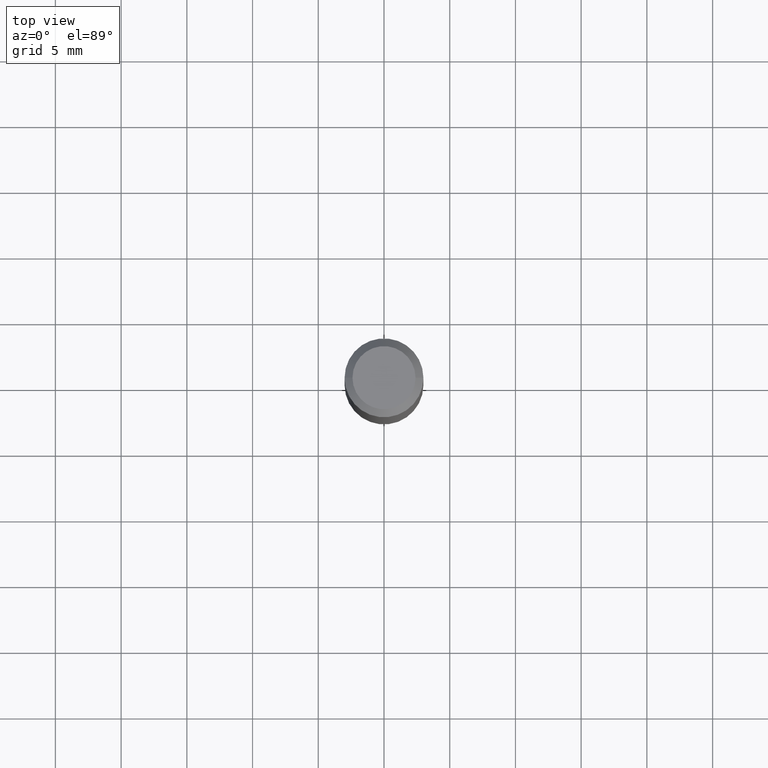
[diagram: clean part render]
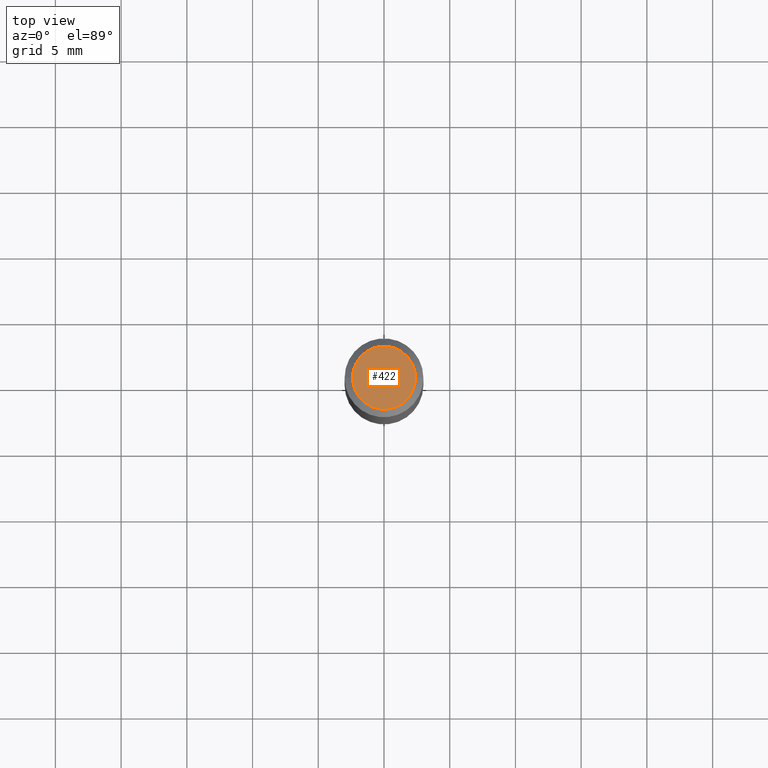
[diagram: same view with one face highlighted and labeled with its STEP entity id]
A machine part, top view. The second image highlights one B-rep face of the part: STEP entity #422.
In plain terms, the highlighted planar face has unit normal (0, -0, -1).
Its self-contained STEP definition (entity closure, byte-faithful):
#14 = FACE_OUTER_BOUND ( 'NONE', #320, .T. ) ;
#37 = DIRECTION ( 'NONE',  ( 2.438088387897960049E-29, -3.491481338843145188E-15, -1.000000000000000000 ) ) ;
#67 = DIRECTION ( 'NONE',  ( -2.445468806185136597E-29, 3.491481338843145583E-15, 1.000000000000000000 ) ) ;
#76 = VERTEX_POINT ( 'NONE', #456 ) ;
#89 = DIRECTION ( 'NONE',  ( -1.000000000000000000, 6.982962677686265922E-15, -4.876176775795935793E-29 ) ) ;
#161 = CARTESIAN_POINT ( 'NONE',  ( -0.09447999999999998066, 7.009847083995354710E-16, -3.085620075132147757E-17 ) ) ;
#168 = AXIS2_PLACEMENT_3D ( 'NONE', #412, #321, #207 ) ;
#195 = EDGE_CURVE ( 'NONE', #436, #76, #434, .T. ) ;
#198 = PLANE ( 'NONE',  #455 ) ;
#207 = DIRECTION ( 'NONE',  ( 1.000000000000000000, -6.982962677686267499E-15, 4.875432709231658792E-29 ) ) ;
#229 = DIRECTION ( 'NONE',  ( 1.000000000000000000, -6.982962677686267499E-15, 4.875432709231658792E-29 ) ) ;
#320 = EDGE_LOOP ( 'NONE', ( #400, #341 ) ) ;
#321 = DIRECTION ( 'NONE',  ( -2.445468806185136597E-29, 3.491481338843145583E-15, 1.000000000000000000 ) ) ;
#329 = AXIS2_PLACEMENT_3D ( 'NONE', #431, #67, #229 ) ;
#341 = ORIENTED_EDGE ( 'NONE', *, *, #368, .T. ) ;
#368 = EDGE_CURVE ( 'NONE', #76, #436, #482, .T. ) ;
#400 = ORIENTED_EDGE ( 'NONE', *, *, #195, .T. ) ;
#412 = CARTESIAN_POINT ( 'NONE',  ( 7.545787641473140628E-46, -1.077338491108201769E-31, -3.085620075131671975E-17 ) ) ;
#415 = CARTESIAN_POINT ( 'NONE',  ( 3.772893820736570314E-46, -5.386692455541008845E-32, -1.542810037565835988E-17 ) ) ;
#422 = ADVANCED_FACE ( 'NONE', ( #14 ), #198, .F. ) ;
#431 = CARTESIAN_POINT ( 'NONE',  ( 7.545787641473140628E-46, -1.077338491108201769E-31, -3.085620075131671975E-17 ) ) ;
#434 = CIRCLE ( 'NONE', #329, 0.09447999999999998066 ) ;
#436 = VERTEX_POINT ( 'NONE', #161 ) ;
#455 = AXIS2_PLACEMENT_3D ( 'NONE', #415, #37, #89 ) ;
#456 = CARTESIAN_POINT ( 'NONE',  ( 0.09447999999999998066, -7.704367267948738690E-16, -3.085620075131172158E-17 ) ) ;
#482 = CIRCLE ( 'NONE', #168, 0.09447999999999998066 ) ;